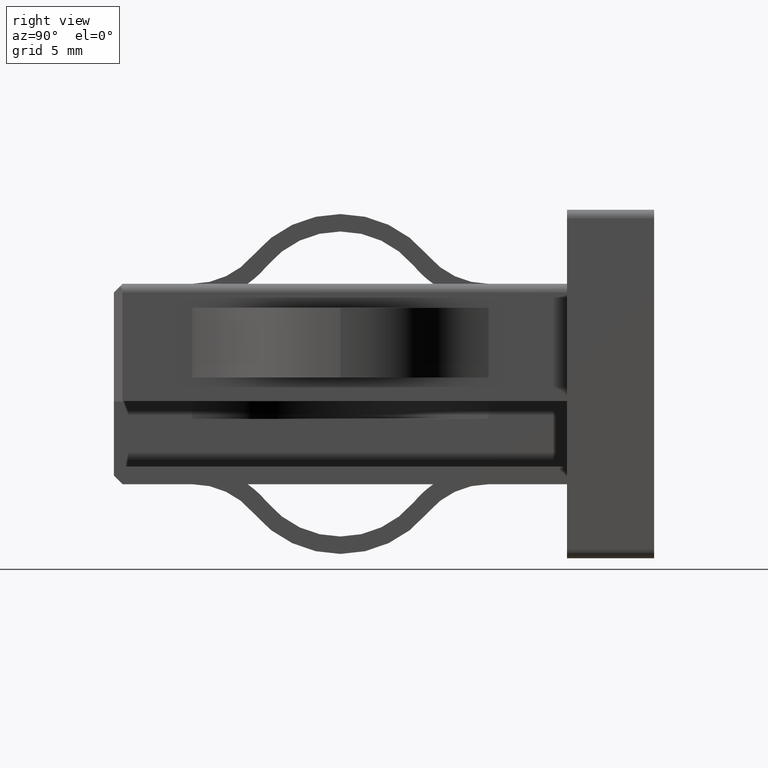
[diagram: clean part render]
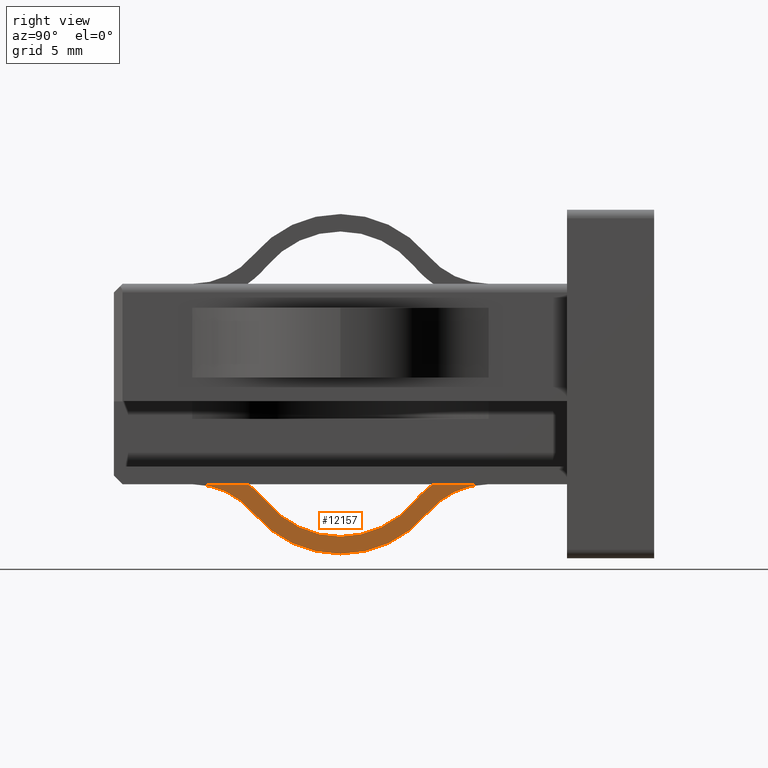
[diagram: same view with one face highlighted and labeled with its STEP entity id]
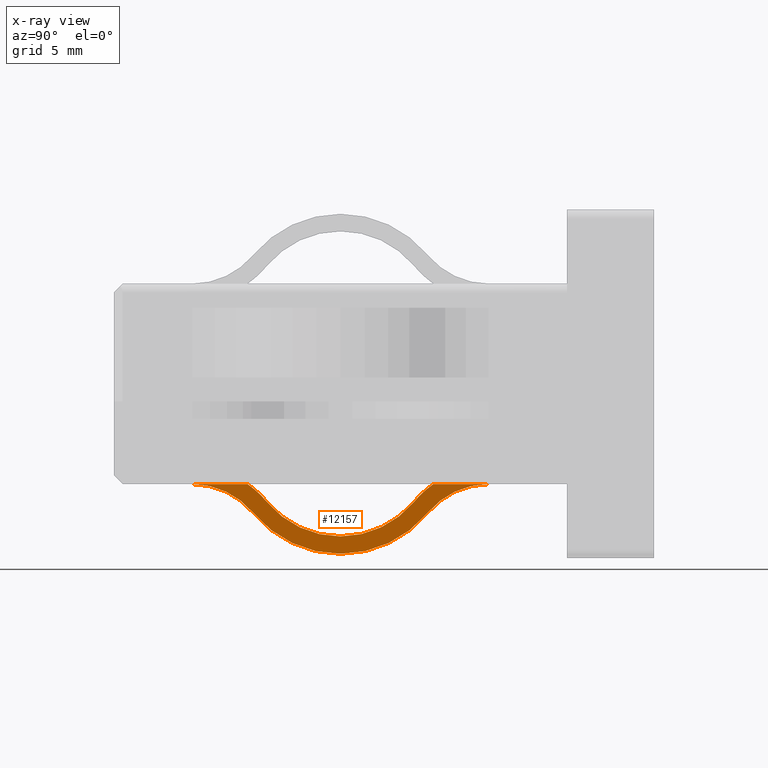
[diagram: x-ray of the same camera — body ghosted, the highlighted face saturated]
A machine part, right view. The second image highlights one B-rep face of the part: STEP entity #12157.
The next image is the same camera in x-ray: the body ghosted, the highlighted face saturated — about 0% of this face is hidden behind the body in this view.
In plain terms, the highlighted planar face has unit normal (1, -0, 0).
Its self-contained STEP definition (entity closure, byte-faithful):
#41 = DIRECTION ( 'NONE',  ( 0.0000000000000000000, 0.0000000000000000000, -1.000000000000000000 ) ) ;
#435 = ORIENTED_EDGE ( 'NONE', *, *, #6914, .T. ) ;
#451 = DIRECTION ( 'NONE',  ( -1.000000000000000000, 0.0000000000000000000, -0.0000000000000000000 ) ) ;
#582 = ORIENTED_EDGE ( 'NONE', *, *, #9924, .F. ) ;
#1070 = EDGE_CURVE ( 'NONE', #10878, #7033, #9285, .T. ) ;
#1161 = VERTEX_POINT ( 'NONE', #9931 ) ;
#1344 = AXIS2_PLACEMENT_3D ( 'NONE', #3608, #451, #1534 ) ;
#1382 = AXIS2_PLACEMENT_3D ( 'NONE', #5104, #8492, #7212 ) ;
#1512 = EDGE_CURVE ( 'NONE', #4378, #1161, #12856, .T. ) ;
#1534 = DIRECTION ( 'NONE',  ( 0.0000000000000000000, 0.0000000000000000000, -1.000000000000000000 ) ) ;
#2260 = DIRECTION ( 'NONE',  ( 0.0000000000000000000, 1.000000000000000000, -0.0000000000000000000 ) ) ;
#2280 = ORIENTED_EDGE ( 'NONE', *, *, #1070, .F. ) ;
#2330 = AXIS2_PLACEMENT_3D ( 'NONE', #13775, #5013, #3008 ) ;
#2505 = AXIS2_PLACEMENT_3D ( 'NONE', #11784, #6473, #41 ) ;
#2546 = EDGE_CURVE ( 'NONE', #7033, #4378, #9450, .T. ) ;
#2648 = EDGE_CURVE ( 'NONE', #4228, #6844, #11169, .T. ) ;
#2906 = CARTESIAN_POINT ( 'NONE',  ( -0.3749999999999977200, -21.50000015412883100, -10.29227953802768000 ) ) ;
#3008 = DIRECTION ( 'NONE',  ( 0.0000000000000000000, 0.0000000000000000000, -1.000000000000000000 ) ) ;
#3155 = PLANE ( 'NONE',  #1382 ) ;
#3194 = CARTESIAN_POINT ( 'NONE',  ( -0.3749999999999977200, -26.00000000000000000, -5.749999999999999100 ) ) ;
#3320 = ORIENTED_EDGE ( 'NONE', *, *, #2546, .F. ) ;
#3434 = DIRECTION ( 'NONE',  ( -1.000000000000000000, 0.0000000000000000000, -0.0000000000000000000 ) ) ;
#3608 = CARTESIAN_POINT ( 'NONE',  ( -0.3749999999999977200, -13.00000007706441400, -3.261029374265801200 ) ) ;
#3648 = AXIS2_PLACEMENT_3D ( 'NONE', #2906, #6130, #13762 ) ;
#3898 = VECTOR ( 'NONE', #5355, 1000.000000000000000 ) ;
#4228 = VERTEX_POINT ( 'NONE', #4916 ) ;
#4378 = VERTEX_POINT ( 'NONE', #11788 ) ;
#4489 = CARTESIAN_POINT ( 'NONE',  ( -0.3749999999999977200, -8.770538316237633600, -6.759665071773753200 ) ) ;
#4916 = CARTESIAN_POINT ( 'NONE',  ( -0.3749999999999977200, -17.22946183789119700, -6.759665071773755000 ) ) ;
#4985 = ORIENTED_EDGE ( 'NONE', *, *, #1512, .F. ) ;
#5013 = DIRECTION ( 'NONE',  ( 1.000000000000000000, -0.0000000000000000000, 0.0000000000000000000 ) ) ;
#5104 = CARTESIAN_POINT ( 'NONE',  ( -0.3749999999999977200, 0.0000000000000000000, 0.0000000000000000000 ) ) ;
#5355 = DIRECTION ( 'NONE',  ( 0.0000000000000000000, 1.000000000000000000, -0.0000000000000000000 ) ) ;
#5391 = EDGE_CURVE ( 'NONE', #1161, #10631, #6518, .T. ) ;
#5483 = DIRECTION ( 'NONE',  ( 0.0000000000000000000, 0.0000000000000000000, -1.000000000000000000 ) ) ;
#5621 = CIRCLE ( 'NONE', #8520, 5.488970625734205000 ) ;
#6130 = DIRECTION ( 'NONE',  ( 1.000000000000000000, -0.0000000000000000000, 0.0000000000000000000 ) ) ;
#6473 = DIRECTION ( 'NONE',  ( 1.000000000000000000, -0.0000000000000000000, 0.0000000000000000000 ) ) ;
#6518 = CIRCLE ( 'NONE', #3648, 4.542279538027684400 ) ;
#6844 = VERTEX_POINT ( 'NONE', #9837 ) ;
#6914 = EDGE_CURVE ( 'NONE', #10878, #8382, #11920, .T. ) ;
#7033 = VERTEX_POINT ( 'NONE', #11543 ) ;
#7117 = DIRECTION ( 'NONE',  ( 0.0000000000000000000, 0.0000000000000000000, -1.000000000000000000 ) ) ;
#7212 = DIRECTION ( 'NONE',  ( 0.0000000000000000000, 0.0000000000000000000, -1.000000000000000000 ) ) ;
#7510 = ORIENTED_EDGE ( 'NONE', *, *, #8114, .T. ) ;
#8114 = EDGE_CURVE ( 'NONE', #8382, #4228, #5621, .T. ) ;
#8144 = LINE ( 'NONE', #3194, #10567 ) ;
#8196 = ORIENTED_EDGE ( 'NONE', *, *, #5391, .F. ) ;
#8382 = VERTEX_POINT ( 'NONE', #4489 ) ;
#8492 = DIRECTION ( 'NONE',  ( 1.000000000000000000, -0.0000000000000000000, 0.0000000000000000000 ) ) ;
#8520 = AXIS2_PLACEMENT_3D ( 'NONE', #11971, #3434, #5483 ) ;
#9020 = DIRECTION ( 'NONE',  ( 1.000000000000000000, -0.0000000000000000000, 0.0000000000000000000 ) ) ;
#9067 = CARTESIAN_POINT ( 'NONE',  ( -0.3749999999999977200, -4.499999999999998200, -10.29227953802768200 ) ) ;
#9285 = LINE ( 'NONE', #12520, #3898 ) ;
#9450 = CIRCLE ( 'NONE', #2330, 4.542279538027684400 ) ;
#9837 = CARTESIAN_POINT ( 'NONE',  ( -0.3749999999999977200, -18.32438067502630800, -5.749999999999999100 ) ) ;
#9924 = EDGE_CURVE ( 'NONE', #10631, #6844, #8144, .T. ) ;
#9931 = CARTESIAN_POINT ( 'NONE',  ( -0.3749999999999977200, -18.00000007706441400, -7.397058844862119300 ) ) ;
#10567 = VECTOR ( 'NONE', #2260, 1000.000000000000000 ) ;
#10631 = VERTEX_POINT ( 'NONE', #13183 ) ;
#10878 = VERTEX_POINT ( 'NONE', #12248 ) ;
#11169 = CIRCLE ( 'NONE', #2505, 5.542279538027681700 ) ;
#11543 = CARTESIAN_POINT ( 'NONE',  ( -0.3749999999999977200, -4.499999999999997300, -5.749999999999999100 ) ) ;
#11784 = CARTESIAN_POINT ( 'NONE',  ( -0.3749999999999977200, -21.50000015412883100, -10.29227953802768000 ) ) ;
#11788 = CARTESIAN_POINT ( 'NONE',  ( -0.3749999999999977200, -8.000000077064413500, -7.397058844862118400 ) ) ;
#11837 = ORIENTED_EDGE ( 'NONE', *, *, #2648, .T. ) ;
#11838 = FACE_OUTER_BOUND ( 'NONE', #13920, .T. ) ;
#11920 = CIRCLE ( 'NONE', #13705, 5.542279538027679900 ) ;
#11971 = CARTESIAN_POINT ( 'NONE',  ( -0.3749999999999977200, -13.00000007706441400, -3.261029374265801200 ) ) ;
#12157 = ADVANCED_FACE ( 'NONE', ( #11838 ), #3155, .T. ) ;
#12248 = CARTESIAN_POINT ( 'NONE',  ( -0.3749999999999977200, -7.675619479102512500, -5.749999999999999100 ) ) ;
#12520 = CARTESIAN_POINT ( 'NONE',  ( -0.3749999999999977200, -26.00000000000000000, -5.749999999999999100 ) ) ;
#12856 = CIRCLE ( 'NONE', #1344, 6.488970625734197000 ) ;
#13183 = CARTESIAN_POINT ( 'NONE',  ( -0.3749999999999977200, -21.50000015412883100, -5.749999999999997300 ) ) ;
#13705 = AXIS2_PLACEMENT_3D ( 'NONE', #9067, #9020, #7117 ) ;
#13762 = DIRECTION ( 'NONE',  ( 0.0000000000000000000, 0.0000000000000000000, -1.000000000000000000 ) ) ;
#13775 = CARTESIAN_POINT ( 'NONE',  ( -0.3749999999999977200, -4.499999999999998200, -10.29227953802768200 ) ) ;
#13920 = EDGE_LOOP ( 'NONE', ( #582, #8196, #4985, #3320, #2280, #435, #7510, #11837 ) ) ;